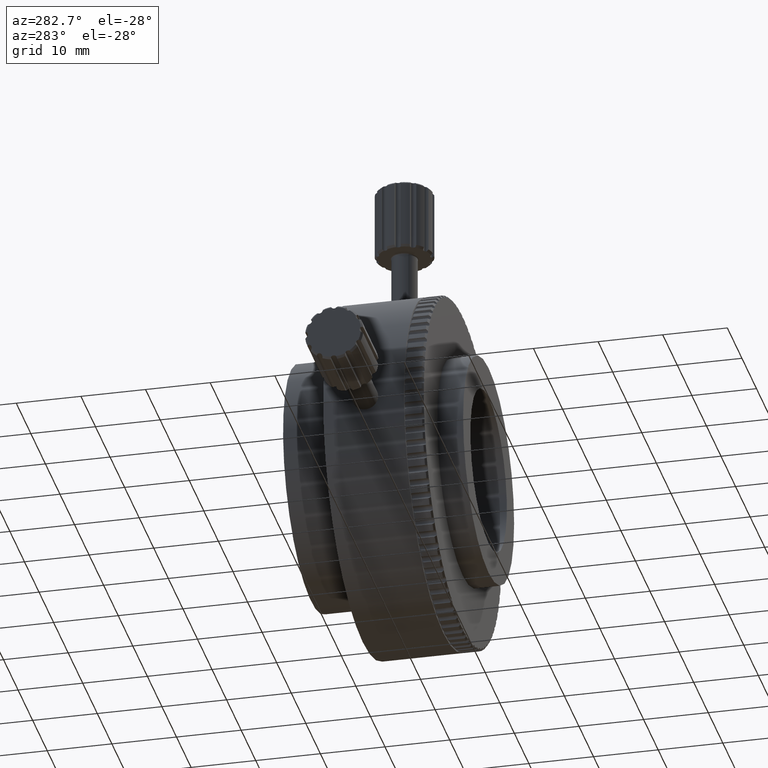
[diagram: clean part render]
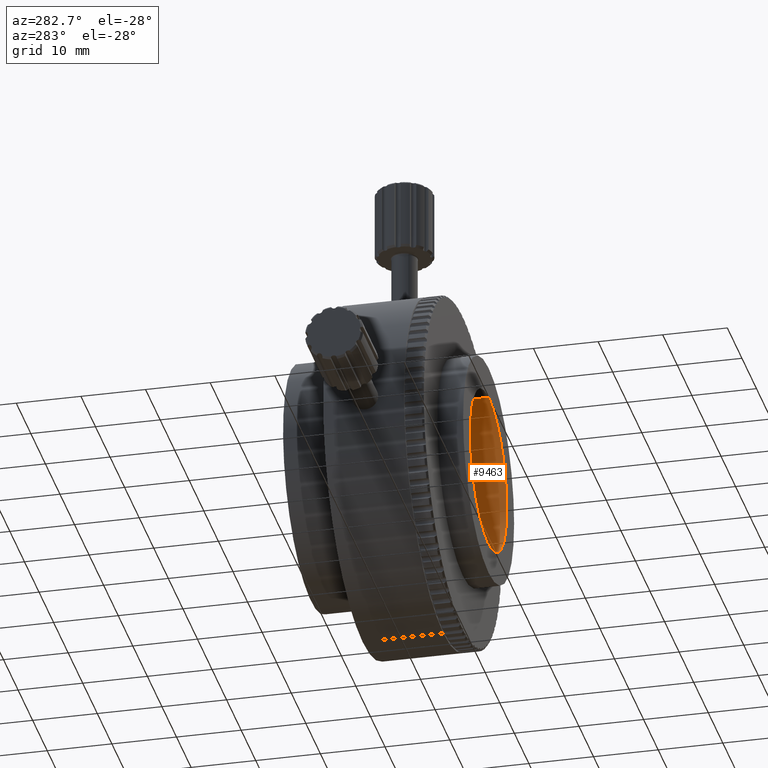
[diagram: same view with one face highlighted and labeled with its STEP entity id]
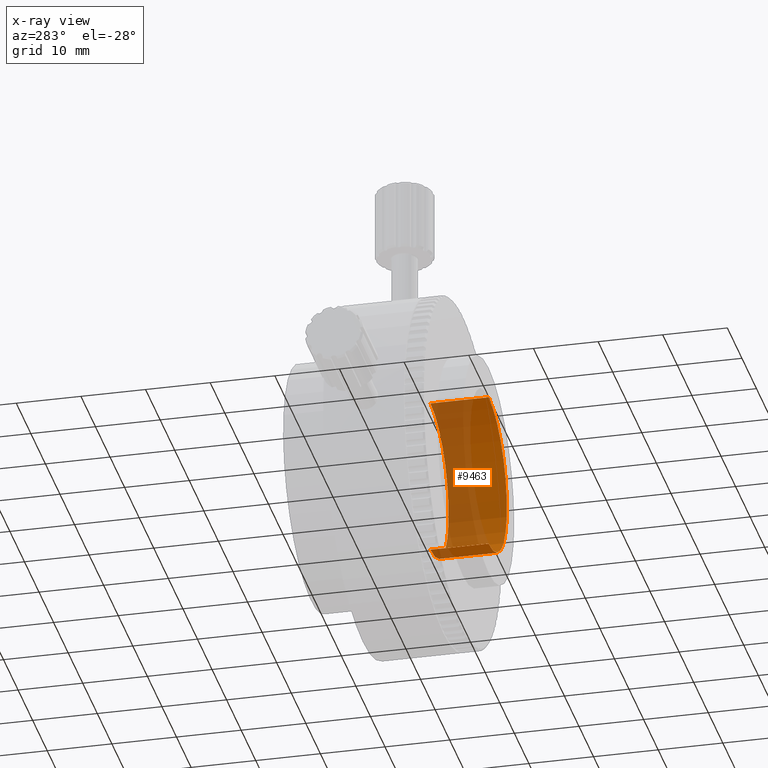
[diagram: x-ray of the same camera — body ghosted, the highlighted face saturated]
A machine part, auxiliary view. The second image highlights one B-rep face of the part: STEP entity #9463.
The next image is the same camera in x-ray: the body ghosted, the highlighted face saturated — about 52% of this face is hidden behind the body in this view.
In plain terms, the highlighted cylindrical surface (partial cylindrical patch) has radius 12.5 mm, axis along (-0, 1, -0).
Its self-contained STEP definition (entity closure, byte-faithful):
#11 = LINE ( 'NONE', #8859, #5017 ) ;
#487 = CARTESIAN_POINT ( 'NONE',  ( 9.352963249104790933, 108.6097110134007835, 76.45373576090617007 ) ) ;
#1827 = DIRECTION ( 'NONE',  ( -0.000000000000000000, 1.000000000000000000, -0.000000000000000000 ) ) ;
#2180 = CARTESIAN_POINT ( 'NONE',  ( 9.352963249104790933, -2.929857331922868457, 76.45373576090617007 ) ) ;
#2931 = ORIENTED_EDGE ( 'NONE', *, *, #3218, .T. ) ;
#3218 = EDGE_CURVE ( 'NONE', #16545, #16848, #10800, .T. ) ;
#3305 = DIRECTION ( 'NONE',  ( -0.000000000000000000, 1.000000000000000000, -0.000000000000000000 ) ) ;
#3463 = VECTOR ( 'NONE', #1827, 1000.000000000000000 ) ;
#3941 = DIRECTION ( 'NONE',  ( -0.000000000000000000, 1.000000000000000000, -0.000000000000000000 ) ) ;
#4045 = ORIENTED_EDGE ( 'NONE', *, *, #15695, .F. ) ;
#5017 = VECTOR ( 'NONE', #3305, 1000.000000000000000 ) ;
#5558 = AXIS2_PLACEMENT_3D ( 'NONE', #2180, #3941, #16389 ) ;
#7284 = DIRECTION ( 'NONE',  ( -0.000000000000000000, 1.000000000000000000, -0.000000000000000000 ) ) ;
#8859 = CARTESIAN_POINT ( 'NONE',  ( 9.352963249104790933, 108.6097110134007835, 88.95373576090615586 ) ) ;
#9133 = CARTESIAN_POINT ( 'NONE',  ( 9.352963249104790933, 6.070142668077139092, 76.45373576090617007 ) ) ;
#9169 = EDGE_CURVE ( 'NONE', #10381, #21423, #12621, .T. ) ;
#9215 = DIRECTION ( 'NONE',  ( -0.000000000000000000, 1.000000000000000000, -0.000000000000000000 ) ) ;
#9340 = DIRECTION ( 'NONE',  ( 0.000000000000000000, 0.000000000000000000, 1.000000000000000000 ) ) ;
#9463 = ADVANCED_FACE ( 'NONE', ( #10657 ), #19545, .F. ) ;
#10381 = VERTEX_POINT ( 'NONE', #19673 ) ;
#10657 = FACE_OUTER_BOUND ( 'NONE', #19750, .T. ) ;
#10711 = CARTESIAN_POINT ( 'NONE',  ( 9.352963249104790933, 6.070142668077139092, 88.95373576090615586 ) ) ;
#10800 = CIRCLE ( 'NONE', #16383, 12.49999999999998401 ) ;
#11766 = CARTESIAN_POINT ( 'NONE',  ( 9.352963249104792709, 6.070142668077139092, 63.95373576090618428 ) ) ;
#12301 = CARTESIAN_POINT ( 'NONE',  ( 9.352963249104792709, 108.6097110134007835, 63.95373576090618428 ) ) ;
#12621 = CIRCLE ( 'NONE', #5558, 12.49999999999998401 ) ;
#14107 = ORIENTED_EDGE ( 'NONE', *, *, #9169, .F. ) ;
#14383 = DIRECTION ( 'NONE',  ( 0.000000000000000000, 0.000000000000000000, 1.000000000000000000 ) ) ;
#15695 = EDGE_CURVE ( 'NONE', #21423, #16848, #18120, .T. ) ;
#16360 = AXIS2_PLACEMENT_3D ( 'NONE', #487, #9215, #9340 ) ;
#16383 = AXIS2_PLACEMENT_3D ( 'NONE', #9133, #7284, #14383 ) ;
#16389 = DIRECTION ( 'NONE',  ( 0.000000000000000000, 0.000000000000000000, 1.000000000000000000 ) ) ;
#16545 = VERTEX_POINT ( 'NONE', #10711 ) ;
#16848 = VERTEX_POINT ( 'NONE', #11766 ) ;
#18097 = ORIENTED_EDGE ( 'NONE', *, *, #21770, .T. ) ;
#18120 = LINE ( 'NONE', #12301, #3463 ) ;
#19211 = CARTESIAN_POINT ( 'NONE',  ( 9.352963249104792709, -2.929857331922868457, 63.95373576090618428 ) ) ;
#19545 = CYLINDRICAL_SURFACE ( 'NONE', #16360, 12.49999999999998401 ) ;
#19673 = CARTESIAN_POINT ( 'NONE',  ( 9.352963249104790933, -2.929857331922868457, 88.95373576090615586 ) ) ;
#19750 = EDGE_LOOP ( 'NONE', ( #4045, #14107, #18097, #2931 ) ) ;
#21423 = VERTEX_POINT ( 'NONE', #19211 ) ;
#21770 = EDGE_CURVE ( 'NONE', #10381, #16545, #11, .T. ) ;